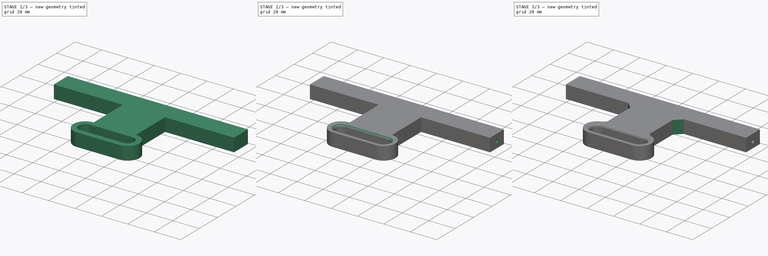
[diagram: build sequence overview — one tinted view per stage of 3, left to right]
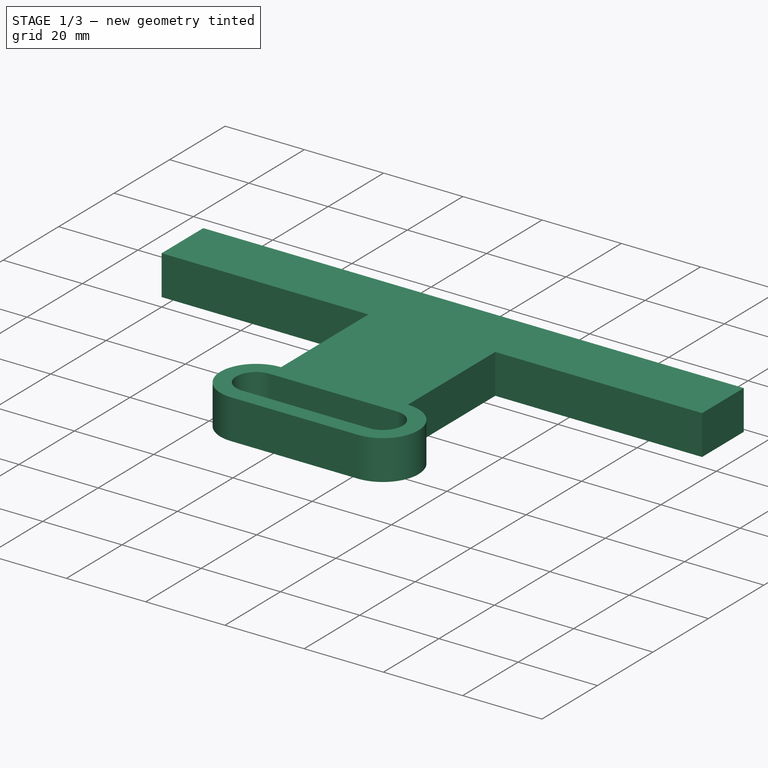
[diagram: stage 1 of 3 — iso view after this stage's code; geometry added in this stage tinted green]
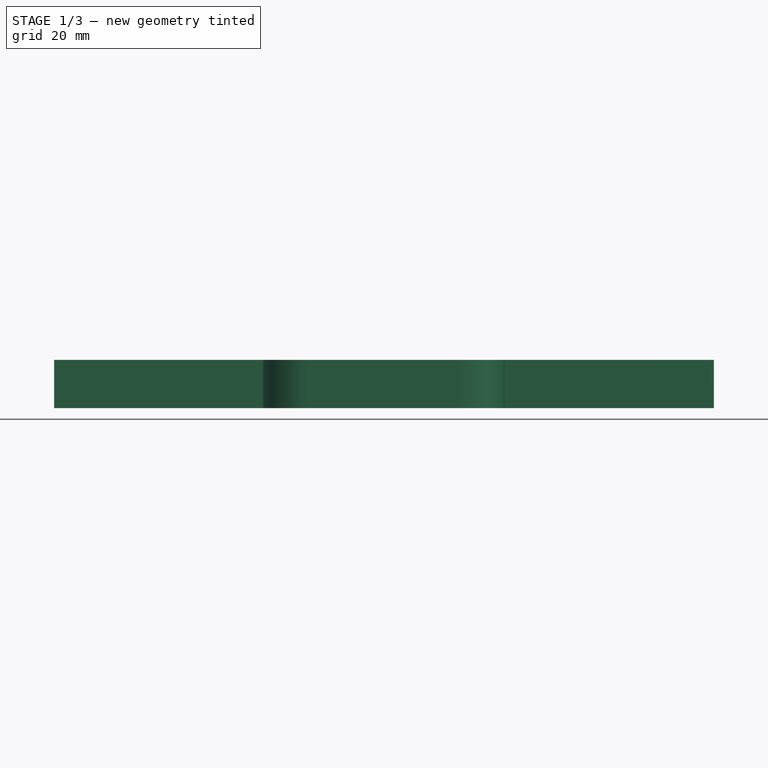
[diagram: stage 1 of 3 — front view after this stage's code; geometry added in this stage tinted green]
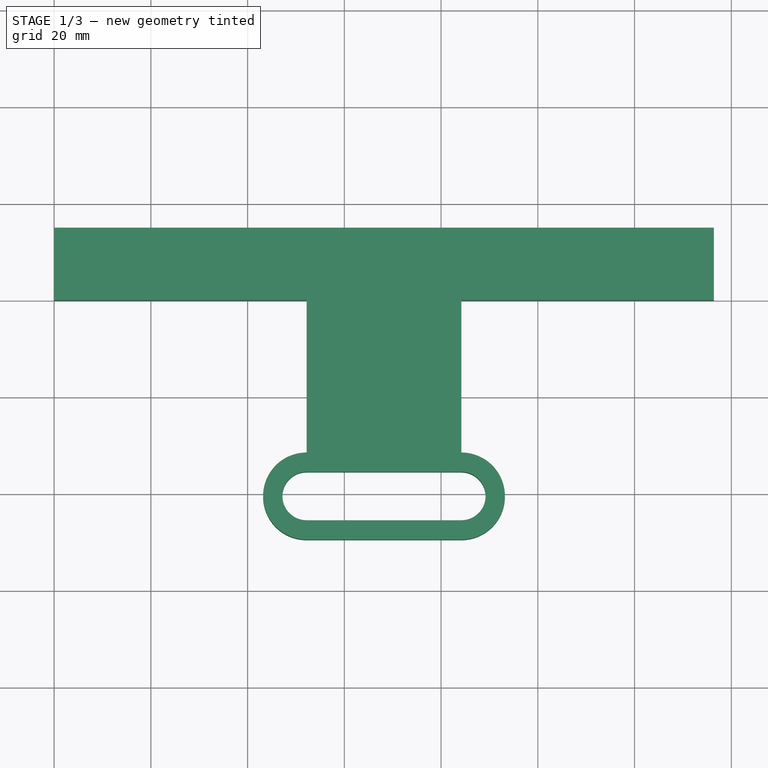
[diagram: stage 1 of 3 — top view after this stage's code; geometry added in this stage tinted green]
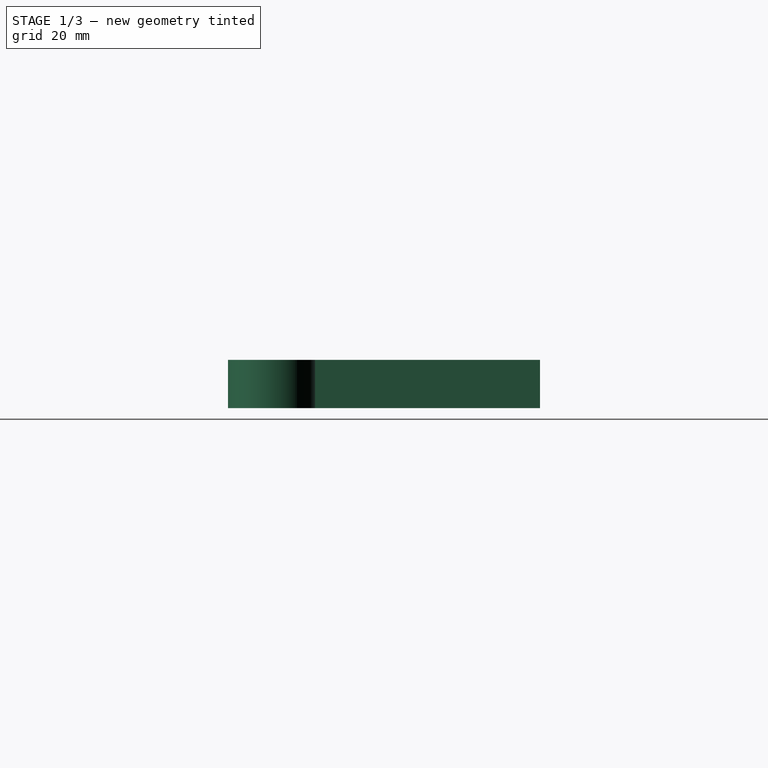
[diagram: stage 1 of 3 — right view after this stage's code; geometry added in this stage tinted green]
FCSTD DOCUMENT  (FreeCAD 0.18R16155 (Git))
Label: pro_w_spool_holder_v2_middle
License: All rights reserved
LicenseURL: http://en.wikipedia.org/wiki/All_rights_reserved
objects: Sketcher::SketchObject×3, PartDesign::Hole×2, PartDesign::Chamfer×2, PartDesign::Pad×1, PartDesign::Fillet×1, PartDesign::Body×1, App::Part×1
note: 13 computed .brp shape members not serialized (recipe doc carries the construction recipe); baked Part::Feature solids carry a one-line shape summary decoded from their .brp

FEATURE [Sketcher::SketchObject] Sketch
  MapMode = 5
  Support = -> [XY_Plane001]
  sketch-geometry (16):
    g0: LineSegment StartX=0 StartY=15 StartZ=0 EndX=136.4 EndY=15 EndZ=0
    g1: LineSegment StartX=136.4 StartY=15 StartZ=0 EndX=136.4 EndY=0 EndZ=0
    g2: LineSegment StartX=52.2 StartY=0 StartZ=0 EndX=0 EndY=0 EndZ=0
    g3: LineSegment StartX=0 StartY=0 StartZ=0 EndX=0 EndY=15 EndZ=0
    g4: LineSegment StartX=136.4 StartY=0 StartZ=0 EndX=84.2 EndY=0 EndZ=0
    g5: LineSegment StartX=84.2 StartY=0 StartZ=0 EndX=84.2 EndY=-31.5 EndZ=0
    g6: LineSegment StartX=52.2 StartY=0 StartZ=0 EndX=52.2 EndY=-31.5 EndZ=0
    g7: ArcOfCircle CenterX=52.2 CenterY=-40.5 CenterZ=0 NormalX=0 NormalY=0 NormalZ=1 AngleXU=0 Radius=5 StartAngle=1.5708 EndAngle=4.71239
    g8: ArcOfCircle CenterX=84.2 CenterY=-40.5 CenterZ=0 NormalX=0 NormalY=0 NormalZ=1 AngleXU=0 Radius=5 StartAngle=4.71239 EndAngle=7.85398
    g9: LineSegment StartX=52.2 StartY=-45.5 StartZ=0 EndX=84.2 EndY=-45.5 EndZ=0
    g10: LineSegment StartX=52.2 StartY=-35.5 StartZ=0 EndX=84.2 EndY=-35.5 EndZ=0
    g11: ArcOfCircle CenterX=52.2 CenterY=-40.5 CenterZ=0 NormalX=0 NormalY=0 NormalZ=1 AngleXU=0 Radius=9 StartAngle=1.5708 EndAngle=4.71239
    g12: ArcOfCircle CenterX=84.2 CenterY=-40.5 CenterZ=0 NormalX=0 NormalY=0 NormalZ=1 AngleXU=0 Radius=9 StartAngle=4.71239 EndAngle=7.85398
    g13: LineSegment StartX=52.2 StartY=-49.5 StartZ=0 EndX=84.2 EndY=-49.5 EndZ=0
    g14: LineSegment [constr] StartX=52.2 StartY=-31.5 StartZ=0 EndX=84.2 EndY=-31.5 EndZ=0
    g15: LineSegment [constr] StartX=84.2 StartY=-31.5 StartZ=0 EndX=84.2 EndY=-35.5 EndZ=0
  constraints (39):
    c: Coincident(g0,g3)
    c: Coincident(g3,g2)
    c: Coincident(g2,g6)
    c: Coincident(g5,g4)
    c: Coincident(g4,g1)
    c: Coincident(g1,g0)
    c: Equal(g5,g6)
    c: Equal(g4,g2)
    c: Parallel(g3,g1)
    c: Parallel(g0,g2)
    c: Parallel(g2,g4)
    c: Parallel(g5,g6)
    c: Parallel(g5,g1)
    c: Perpendicular(g1,g4)
    c: Equal(g1,g3)
    c: Horizontal(g0)
    c: Coincident(g2,g-1)
    c: Distance(g0) = 136.4
    c: Distance(g3) = 15
    c: Distance(g5) = 31.5
    c: Tangent(g7,g10) = 1.5708
    c: Tangent(g7,g9) = -1.5708
    c: Tangent(g9,g8) = -1.5708
    c: Tangent(g10,g8) = 1.5708
    c: Horizontal(g9)
    c: Equal(g7,g8)
    c: Distance(g10) = 32
    c: Diameter(g7) = 10
    c: Tangent(g11,g14) = 1.5708
    c: Tangent(g11,g13) = -1.5708
    c: Tangent(g13,g12) = -1.5708
    c: Tangent(g14,g12) = 1.5708
    c: Coincident(g12,g5)
    c: Coincident(g11,g6)
    c: Coincident(g8,g12)
    c: Coincident(g7,g11)
    c: Coincident(g15,g5)
    c: Coincident(g15,g8)
    c: Distance(g15) = 4
FEATURE [PartDesign::Pad] Pad
  Length = 10
  Length2 = 100
  Profile = -> Sketch
  Type = 0
FEATURE [Sketcher::SketchObject] Sketch001
  ExternalGeometry = -> [Pad]
  MapMode = 5
  Placement = pos=(0,0,0) rot=(-0.57735,0.57735,0.57735;4.18879rad)
  Support = -> [Pad]
  sketch-geometry (5):
    g0: Circle CenterX=-7.5 CenterY=4.65 CenterZ=0 NormalX=0 NormalY=0 NormalZ=1 AngleXU=0 Radius=1.65
    g1: LineSegment [constr] StartX=-15 StartY=0 StartZ=0 EndX=-7.5 EndY=4.65 EndZ=0
    g2: LineSegment [constr] StartX=-7.5 StartY=3 StartZ=0 EndX=-7.5 EndY=0 EndZ=0
    g3: LineSegment [constr] StartX=-7.5 StartY=4.65 StartZ=0 EndX=0 EndY=0 EndZ=0
    g4: LineSegment [constr] StartX=-7.5 StartY=4.65 StartZ=0 EndX=-7.5 EndY=3 EndZ=0
  constraints (13):
    c: Diameter(g0) = 3.3
    c: Equal(g3,g1)
    c: Coincident(g3,g0)
    c: Coincident(g1,g0)
    c: PointOnObject(g2,g0)
    c: Coincident(g4,g2)
    c: Coincident(g4,g0)
    c: Parallel(g2,g4)
    c: Coincident(g3,g-1)
    c: Coincident(g1,g-3)
    c: PointOnObject(g2,g-3)
    c: Perpendicular(g-3,g2)
    c: Distance(g2) = 3
FEATURE [Sketcher::SketchObject] Sketch002
  ExternalGeometry = -> [Pad]
  MapMode = 5
  Placement = pos=(136.4,0,0) rot=(0.57735,0.57735,0.57735;2.0944rad)
  Support = -> [Pad]
  sketch-geometry (5):
    g0: Circle CenterX=7.5 CenterY=4.65 CenterZ=0 NormalX=0 NormalY=0 NormalZ=1 AngleXU=0 Radius=1.65
    g1: LineSegment [constr] StartX=0 StartY=0 StartZ=0 EndX=7.5 EndY=4.65 EndZ=0
    g2: LineSegment [constr] StartX=7.5 StartY=4.65 StartZ=0 EndX=15 EndY=0 EndZ=0
    g3: LineSegment [constr] StartX=7.5 StartY=3 StartZ=0 EndX=7.5 EndY=4.65 EndZ=0
    g4: LineSegment [constr] StartX=7.5 StartY=3 StartZ=0 EndX=7.5 EndY=0 EndZ=0
  constraints (13):
    c: Diameter(g0) = 3.3
    c: Equal(g2,g1)
    c: Parallel(g3,g4)
    c: Coincident(g3,g0)
    c: Coincident(g1,g0)
    c: Coincident(g2,g0)
    c: Coincident(g3,g4)
    c: PointOnObject(g3,g0)
    c: Coincident(g2,g-3)
    c: Coincident(g1,g-1)
    c: Distance(g4) = 3
    c: PointOnObject(g4,g-3)
    c: Perpendicular(g-3,g4)
FEATURE [PartDesign::Hole] Hole
  BaseFeature = -> Pad
  Depth = 16
  DepthType = 0
  Diameter = 2.65
  DrillPoint = 1
  DrillPointAngle = 118
  HoleCutCountersinkAngle = 90
  HoleCutDepth = 0
  HoleCutDiameter = 3
  HoleCutType = 0
  ModelActualThread = false
  Profile = -> Sketch001
  Tapered = false
  TaperedAngle = 90
  ThreadAngle = 60
  ThreadClass = 0
  ThreadCutOffInner = 0.0378886
  ThreadCutOffOuter = 0.0757772
  ThreadDirection = 1
  ThreadFit = 0
  ThreadPitch = 0.35
  ThreadSize = 9
  ThreadType = 2
  Threaded = true
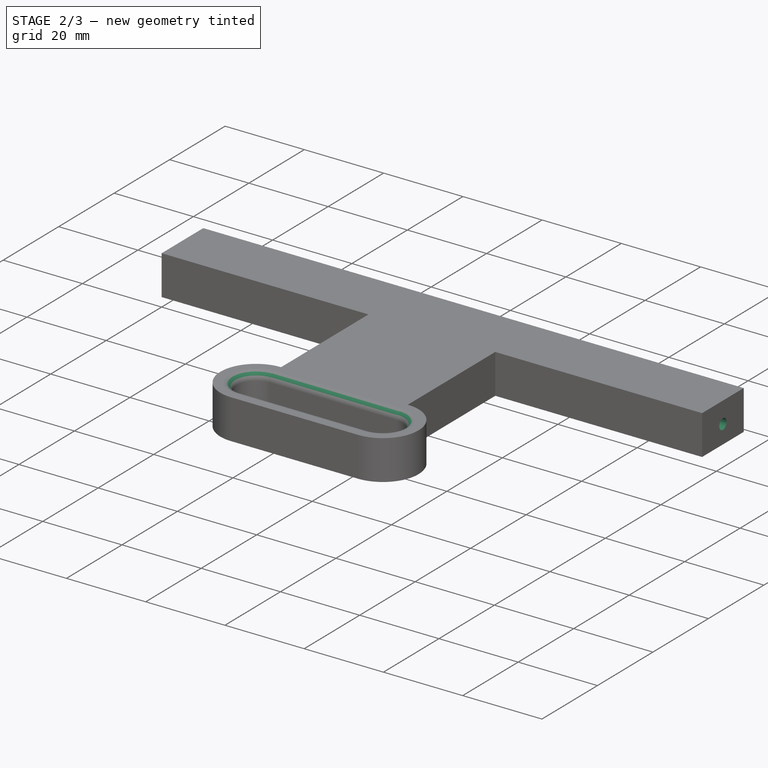
[diagram: stage 2 of 3 — iso view after this stage's code; geometry added in this stage tinted green]
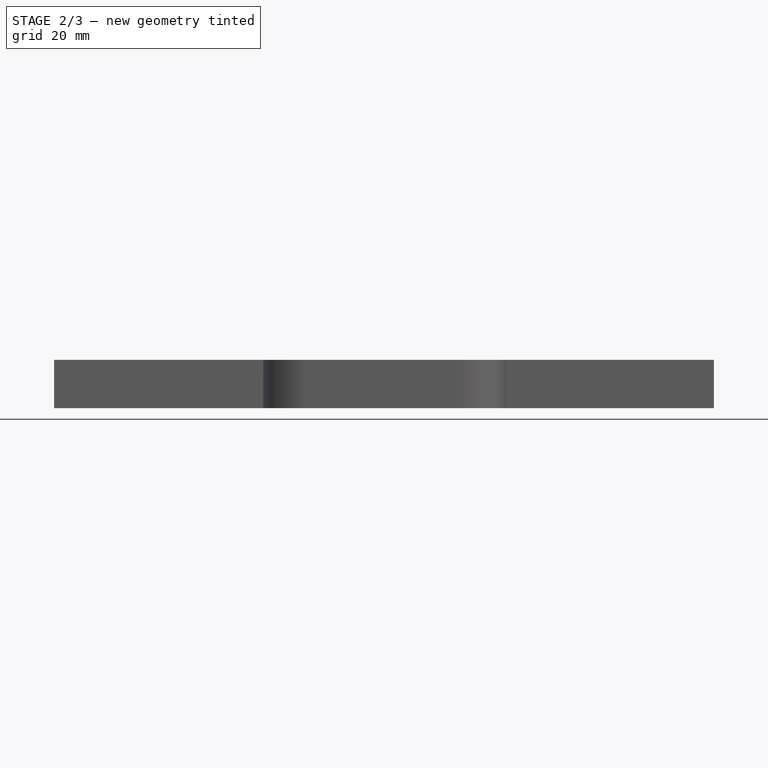
[diagram: stage 2 of 3 — front view after this stage's code; geometry added in this stage tinted green]
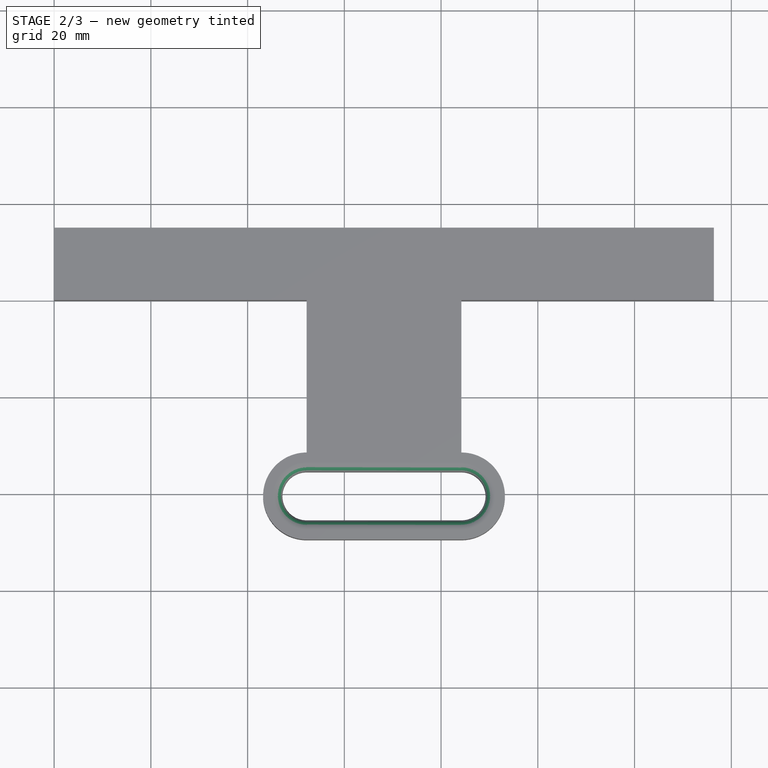
[diagram: stage 2 of 3 — top view after this stage's code; geometry added in this stage tinted green]
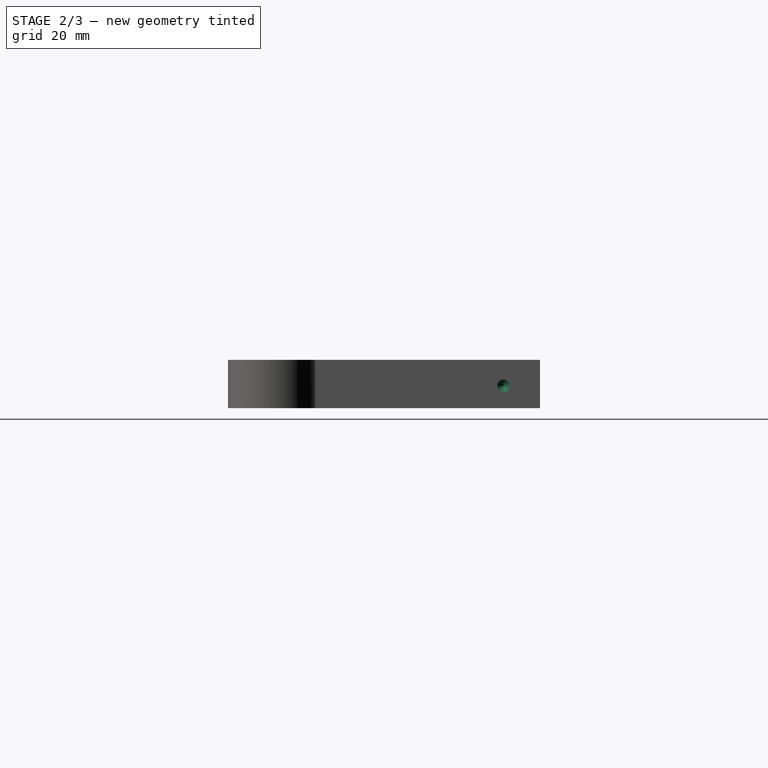
[diagram: stage 2 of 3 — right view after this stage's code; geometry added in this stage tinted green]
FEATURE [PartDesign::Hole] Hole001
  BaseFeature = -> Hole
  Depth = 16
  DepthType = 0
  Diameter = 2.65
  DrillPoint = 1
  DrillPointAngle = 118
  HoleCutCountersinkAngle = 90
  HoleCutDepth = 0
  HoleCutDiameter = 3
  HoleCutType = 0
  ModelActualThread = false
  Profile = -> Sketch002
  Tapered = false
  TaperedAngle = 90
  ThreadAngle = 60
  ThreadClass = 0
  ThreadCutOffInner = 0.0378886
  ThreadCutOffOuter = 0.0757772
  ThreadDirection = 1
  ThreadFit = 0
  ThreadPitch = 0.35
  ThreadSize = 9
  ThreadType = 2
  Threaded = true
FEATURE [PartDesign::Fillet] Fillet
  Base = -> Hole001 [Edge33,Edge32,Edge30,Edge31,Edge22,Edge21,Edge20,Edge19]
  BaseFeature = -> Hole001
  Radius = 2
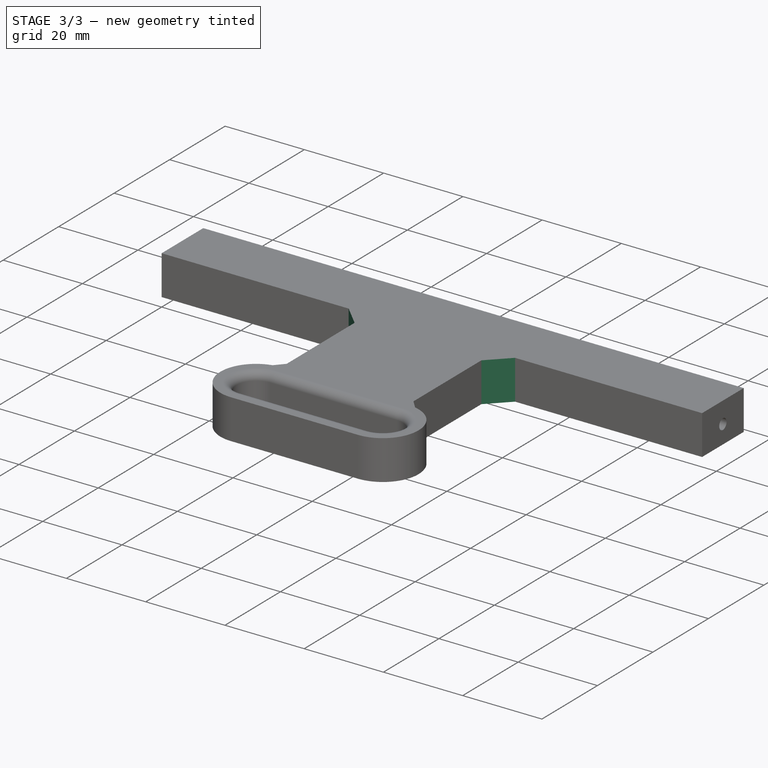
[diagram: stage 3 of 3 — iso view after this stage's code; geometry added in this stage tinted green]
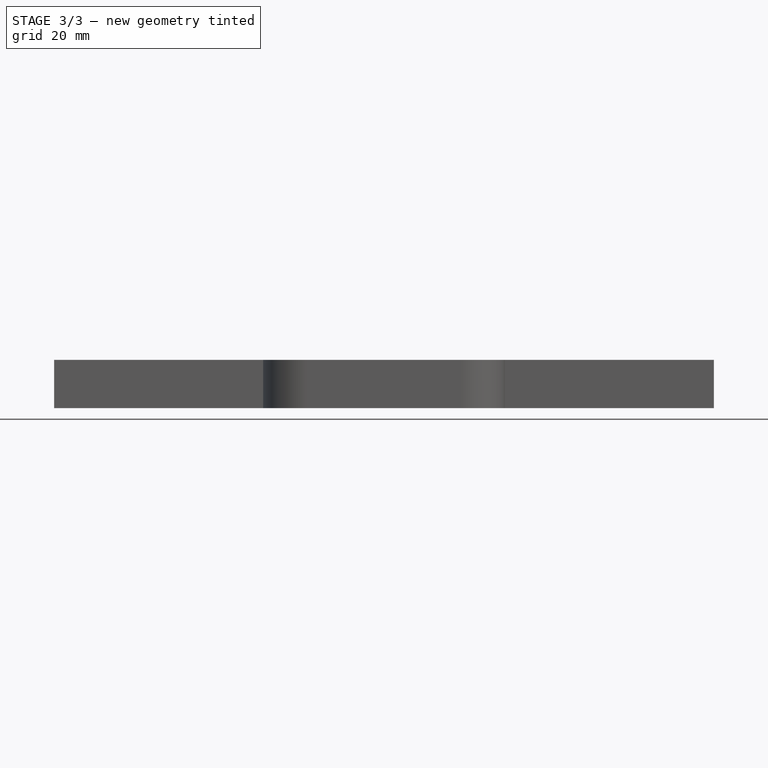
[diagram: stage 3 of 3 — front view after this stage's code; geometry added in this stage tinted green]
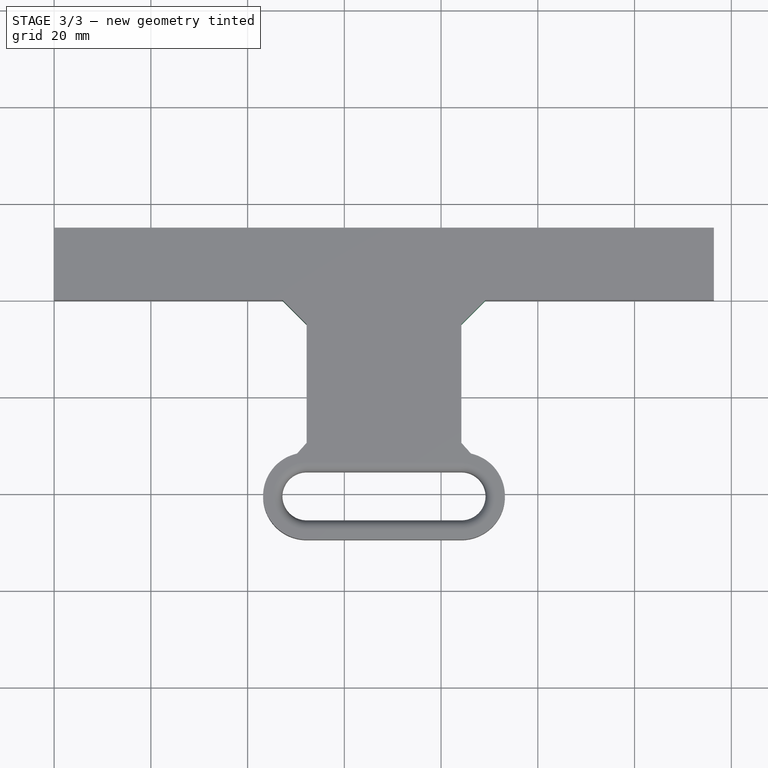
[diagram: stage 3 of 3 — top view after this stage's code; geometry added in this stage tinted green]
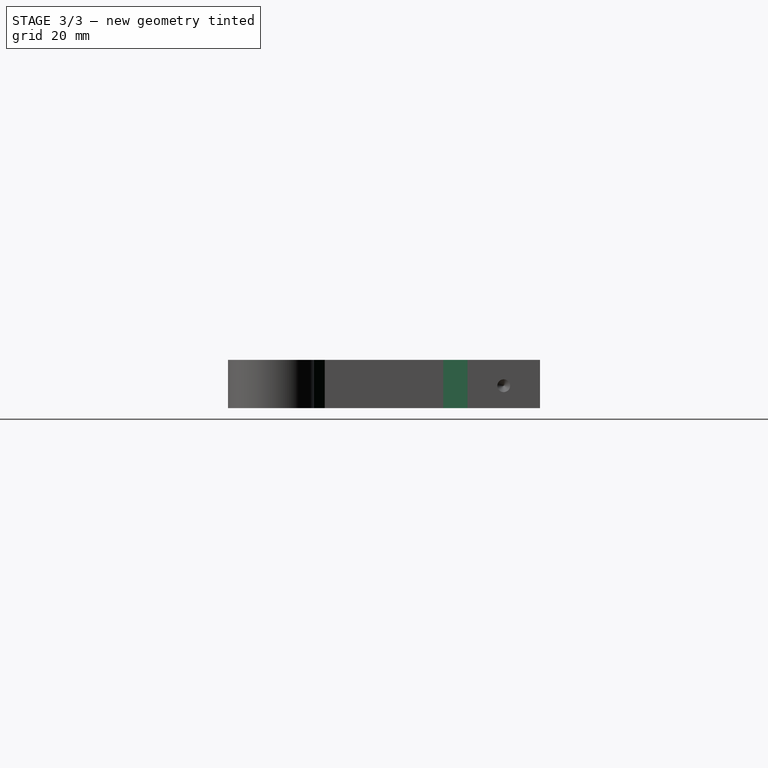
[diagram: stage 3 of 3 — right view after this stage's code; geometry added in this stage tinted green]
FEATURE [PartDesign::Chamfer] Chamfer
  Base = -> Fillet [Edge42,Edge36]
  BaseFeature = -> Fillet
  Size = 2
FEATURE [PartDesign::Chamfer] Chamfer001
  Base = -> Chamfer [Edge40,Edge18]
  BaseFeature = -> Chamfer
  Size = 5
FEATURE [PartDesign::Body] Body
  Group = -> [Sketch,Pad,Sketch001,Sketch002,Hole,Hole001,Fillet,Chamfer,Chamfer001]
  Origin = -> Origin001
  Tip = -> Chamfer001
FEATURE [App::Part] Part
  Group = -> [Body]
  Origin = -> Origin
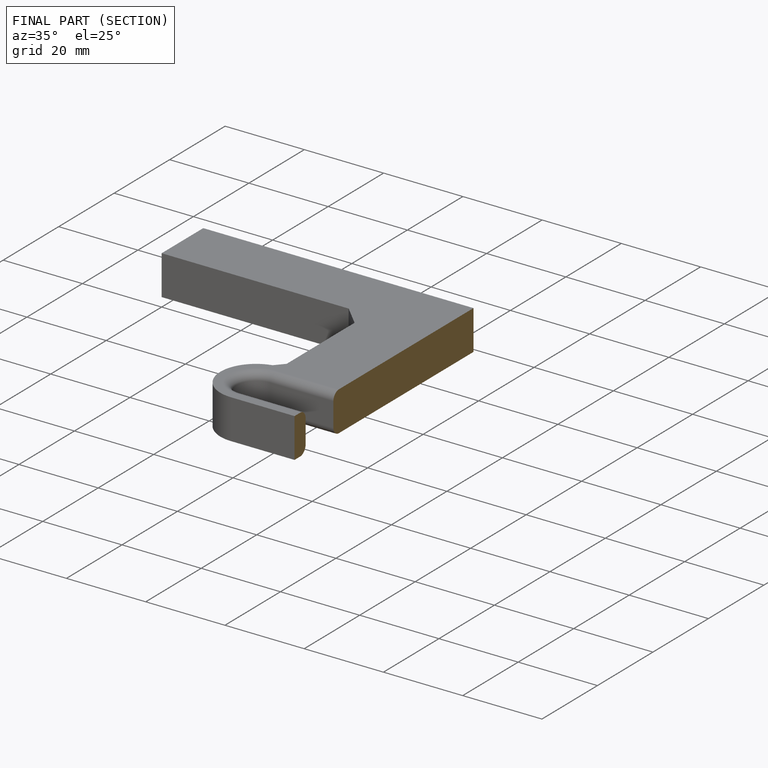
[diagram: finished part — half-section view (interior)]
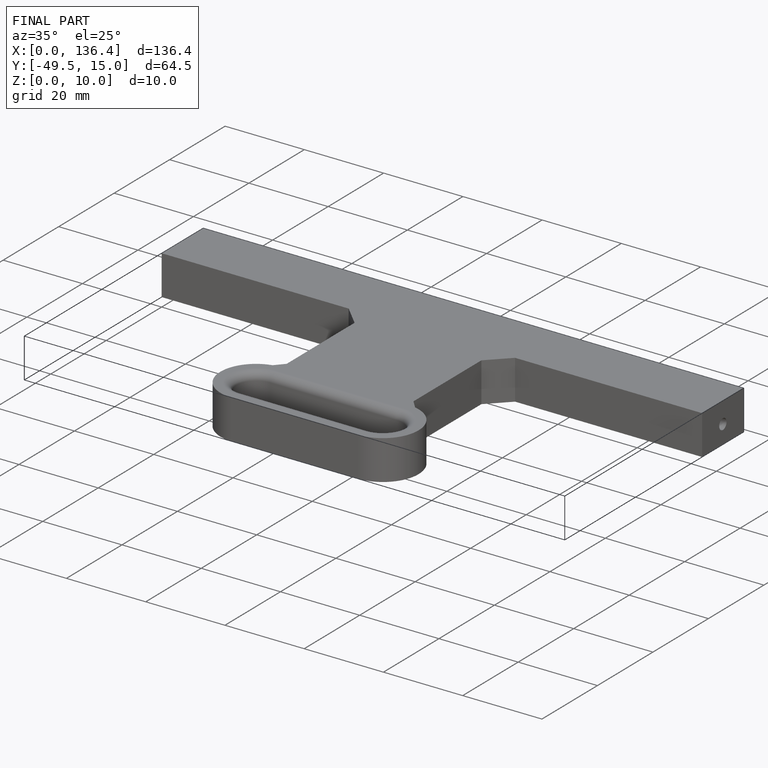
[diagram: finished part — iso view with bounding-box wireframe]
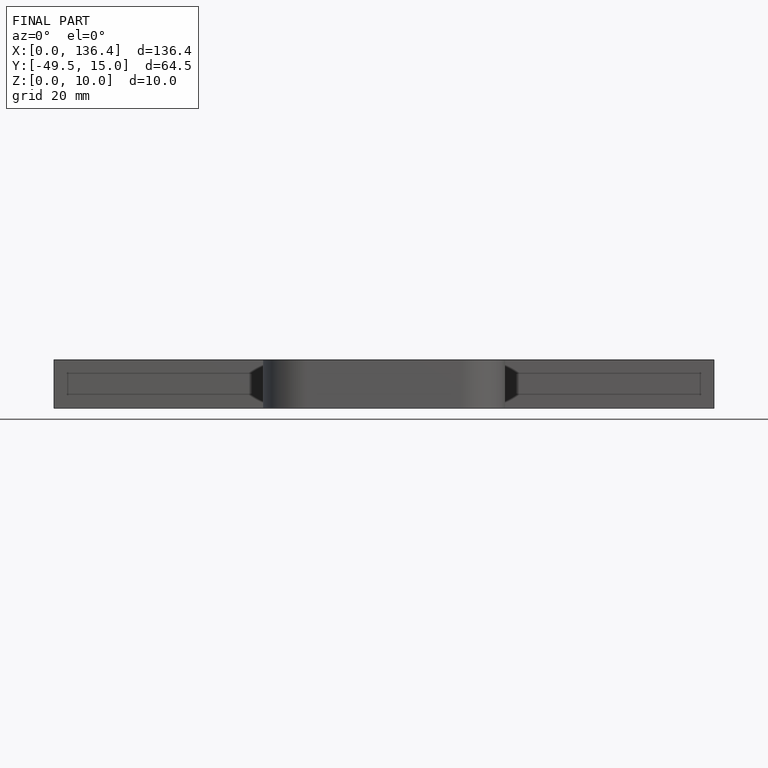
[diagram: finished part — front view with bounding-box wireframe]
